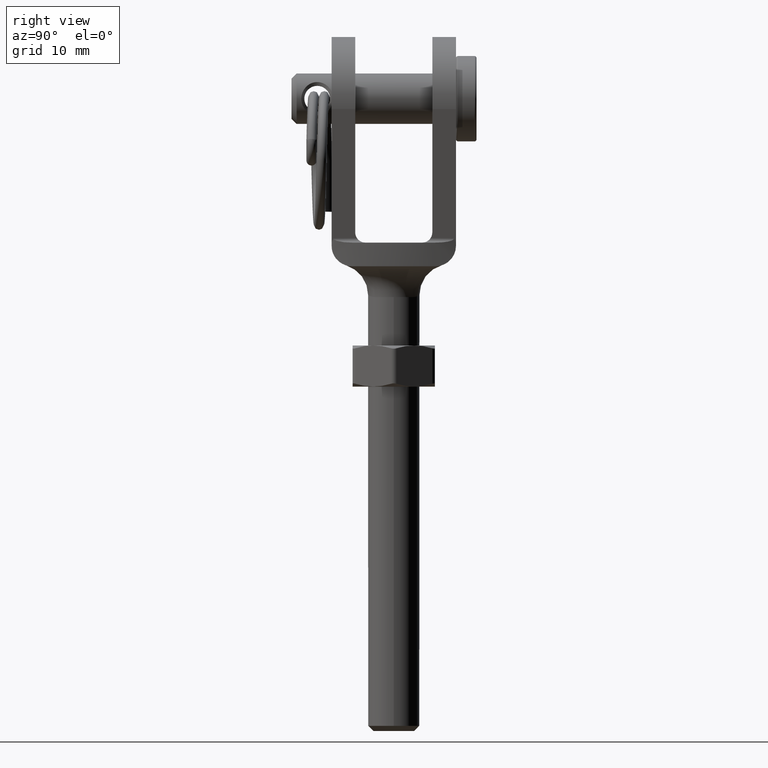
[diagram: clean part render]
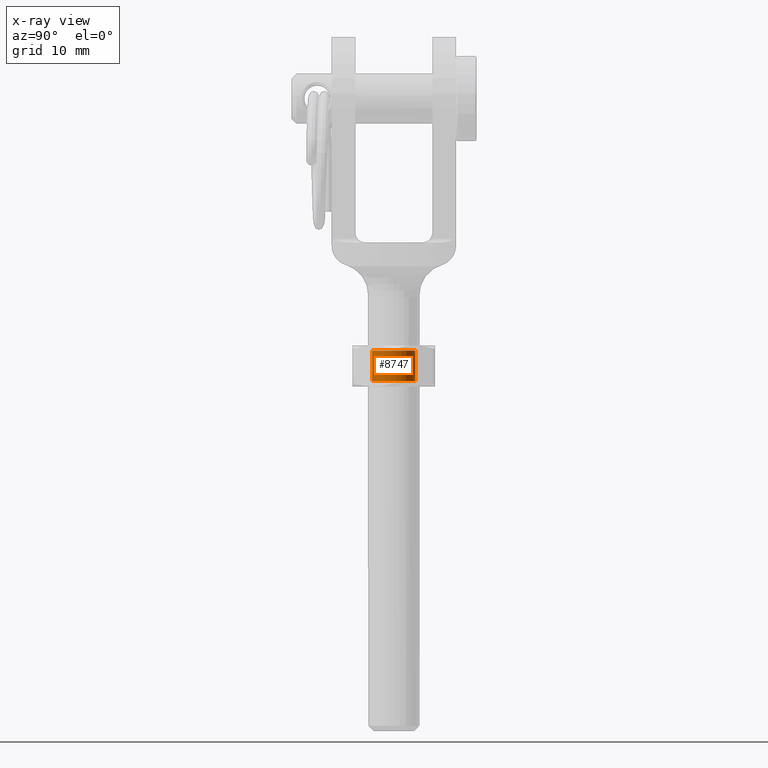
[diagram: x-ray — body ghosted, one internal face saturated and labeled with its STEP entity id]
A machine part, right view, then the same camera in x-ray: the body is ghosted and one INTERNAL B-rep face — a face not visible from any outside direction — is saturated and labeled: STEP entity #8747.
In plain terms, the highlighted cylindrical surface (bore or boss wall) has radius 2.1 mm, axis along (0, 0, -1).
Its self-contained STEP definition (entity closure, byte-faithful):
#1636 = EDGE_LOOP ( 'NONE', ( #17431 ) ) ;
#1894 = AXIS2_PLACEMENT_3D ( 'NONE', #6925, #9984, #8576 ) ;
#1923 = FACE_OUTER_BOUND ( 'NONE', #15548, .T. ) ;
#3548 = CARTESIAN_POINT ( 'NONE',  ( 0.000000000000000000, 2.000000000000000000, 0.000000000000000000 ) ) ;
#3647 = CYLINDRICAL_SURFACE ( 'NONE', #9452, 2.099999999999999201 ) ;
#4451 = CARTESIAN_POINT ( 'NONE',  ( 0.000000000000000000, -1.499999999999998668, 2.099999999999999201 ) ) ;
#5018 = EDGE_CURVE ( 'NONE', #13225, #13225, #12476, .T. ) ;
#6019 = CARTESIAN_POINT ( 'NONE',  ( 0.000000000000000000, 1.499999999999998668, 2.099999999999999201 ) ) ;
#6084 = EDGE_CURVE ( 'NONE', #15928, #15928, #11745, .T. ) ;
#6687 = ORIENTED_EDGE ( 'NONE', *, *, #6084, .T. ) ;
#6925 = CARTESIAN_POINT ( 'NONE',  ( 0.000000000000000000, -1.499999999999998668, 0.000000000000000000 ) ) ;
#8079 = DIRECTION ( 'NONE',  ( 0.000000000000000000, 0.000000000000000000, 1.000000000000000000 ) ) ;
#8336 = DIRECTION ( 'NONE',  ( 0.000000000000000000, 0.000000000000000000, 1.000000000000000000 ) ) ;
#8576 = DIRECTION ( 'NONE',  ( 0.000000000000000000, 0.000000000000000000, 1.000000000000000000 ) ) ;
#8747 = ADVANCED_FACE ( 'NONE', ( #1923, #16733 ), #3647, .F. ) ;
#9452 = AXIS2_PLACEMENT_3D ( 'NONE', #3548, #16172, #8079 ) ;
#9984 = DIRECTION ( 'NONE',  ( -0.000000000000000000, -1.000000000000000000, -0.000000000000000000 ) ) ;
#11672 = CARTESIAN_POINT ( 'NONE',  ( 0.000000000000000000, 1.499999999999998668, 0.000000000000000000 ) ) ;
#11745 = CIRCLE ( 'NONE', #13927, 2.099999999999999201 ) ;
#12476 = CIRCLE ( 'NONE', #1894, 2.099999999999999201 ) ;
#13225 = VERTEX_POINT ( 'NONE', #4451 ) ;
#13927 = AXIS2_PLACEMENT_3D ( 'NONE', #11672, #17775, #8336 ) ;
#15548 = EDGE_LOOP ( 'NONE', ( #6687 ) ) ;
#15928 = VERTEX_POINT ( 'NONE', #6019 ) ;
#16172 = DIRECTION ( 'NONE',  ( -0.000000000000000000, 1.000000000000000000, -0.000000000000000000 ) ) ;
#16733 = FACE_OUTER_BOUND ( 'NONE', #1636, .T. ) ;
#17431 = ORIENTED_EDGE ( 'NONE', *, *, #5018, .T. ) ;
#17775 = DIRECTION ( 'NONE',  ( 0.000000000000000000, 1.000000000000000000, 0.000000000000000000 ) ) ;